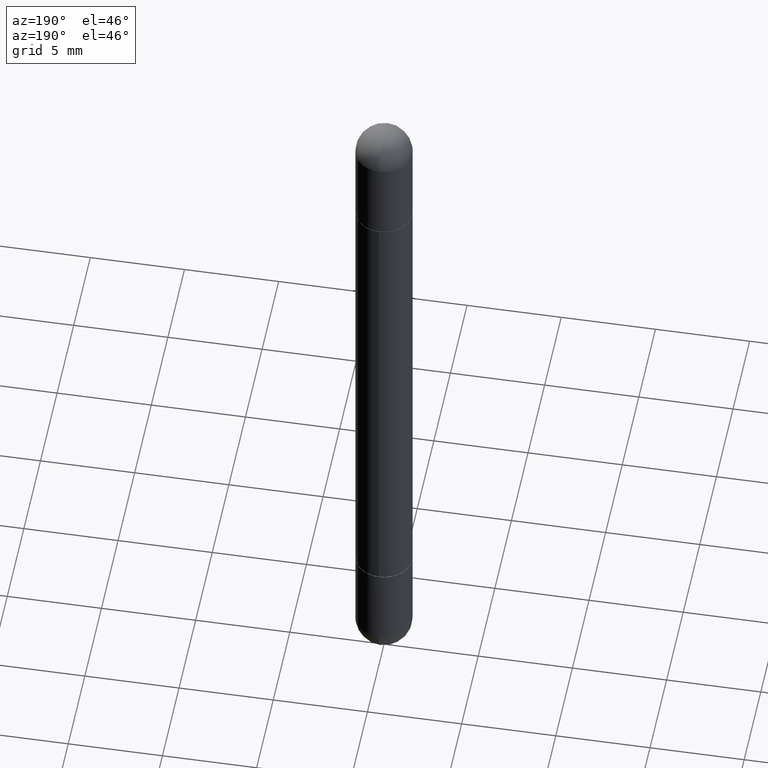
[diagram: clean part render]
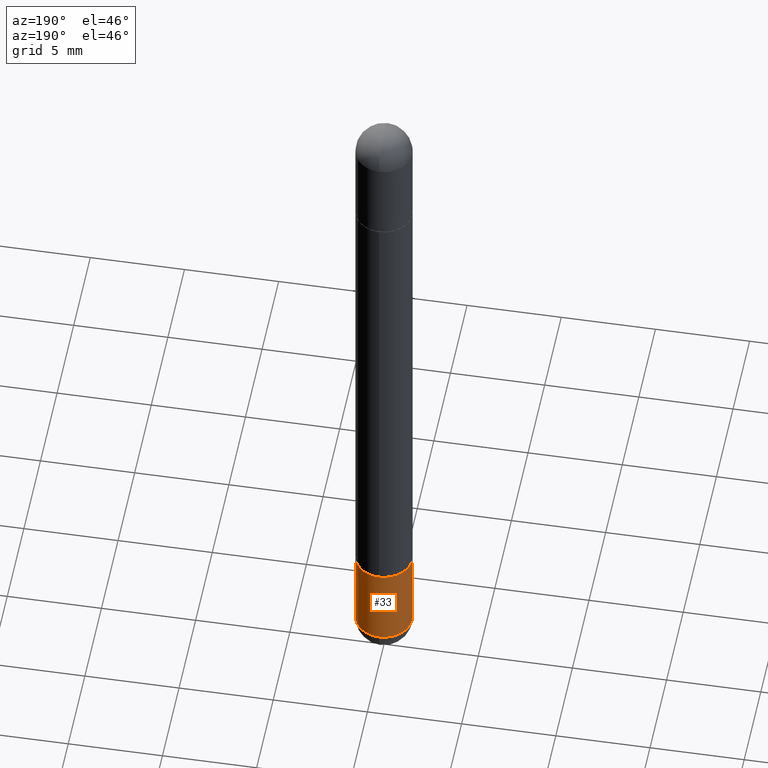
[diagram: same view with one face highlighted and labeled with its STEP entity id]
A machine part, auxiliary view. The second image highlights one B-rep face of the part: STEP entity #33.
In plain terms, the highlighted cylindrical surface (edge-blend (fillet) strip) has radius 1.4999 mm, axis along (-0, 0, 1).
Its self-contained STEP definition (entity closure, byte-faithful):
#5 = LINE ( 'NONE', #512, #705 ) ;
#10 = VERTEX_POINT ( 'NONE', #435 ) ;
#33 = ADVANCED_FACE ( 'NONE', ( #363 ), #689, .T. ) ;
#66 = DIRECTION ( 'NONE',  ( -2.445468806185136877E-29, 3.491481338843145188E-15, 1.000000000000000000 ) ) ;
#74 = CIRCLE ( 'NONE', #321, 0.05905000000000001914 ) ;
#90 = EDGE_CURVE ( 'NONE', #10, #471, #542, .T. ) ;
#102 = EDGE_CURVE ( 'NONE', #10, #688, #5, .T. ) ;
#117 = VECTOR ( 'NONE', #66, 39.37007874015748143 ) ;
#136 = EDGE_CURVE ( 'NONE', #462, #365, #322, .T. ) ;
#158 = EDGE_CURVE ( 'NONE', #688, #365, #653, .T. ) ;
#159 = AXIS2_PLACEMENT_3D ( 'NONE', #648, #249, #254 ) ;
#167 = CARTESIAN_POINT ( 'NONE',  ( 0.000000000000000000, 0.000000000000000000, 0.000000000000000000 ) ) ;
#176 = ORIENTED_EDGE ( 'NONE', *, *, #136, .T. ) ;
#206 = DIRECTION ( 'NONE',  ( -2.445468806185136877E-29, 3.491481338843145188E-15, 1.000000000000000000 ) ) ;
#213 = AXIS2_PLACEMENT_3D ( 'NONE', #167, #429, #420 ) ;
#217 = DIRECTION ( 'NONE',  ( -2.445468806185136597E-29, 3.491481338843145583E-15, 1.000000000000000000 ) ) ;
#249 = DIRECTION ( 'NONE',  ( -2.445468806185136597E-29, 3.491481338843145583E-15, 1.000000000000000000 ) ) ;
#254 = DIRECTION ( 'NONE',  ( 1.000000000000000000, -6.982962677686270655E-15, 0.000000000000000000 ) ) ;
#296 = EDGE_LOOP ( 'NONE', ( #650, #176, #395, #374, #619 ) ) ;
#314 = CARTESIAN_POINT ( 'NONE',  ( 3.081046148912652946E-29, -4.398917338808479031E-15, -1.259899999999999798 ) ) ;
#321 = AXIS2_PLACEMENT_3D ( 'NONE', #662, #217, #472 ) ;
#322 = LINE ( 'NONE', #711, #117 ) ;
#363 = FACE_OUTER_BOUND ( 'NONE', #296, .T. ) ;
#365 = VERTEX_POINT ( 'NONE', #537 ) ;
#374 = ORIENTED_EDGE ( 'NONE', *, *, #102, .F. ) ;
#376 = DIRECTION ( 'NONE',  ( -2.445468806185136597E-29, 3.491481338843145583E-15, 1.000000000000000000 ) ) ;
#395 = ORIENTED_EDGE ( 'NONE', *, *, #158, .F. ) ;
#397 = AXIS2_PLACEMENT_3D ( 'NONE', #314, #376, #575 ) ;
#420 = DIRECTION ( 'NONE',  ( 1.000000000000000000, -6.982962677686266711E-15, 4.876176775795935793E-29 ) ) ;
#429 = DIRECTION ( 'NONE',  ( -2.445468806185136597E-29, 3.491481338843145583E-15, 1.000000000000000000 ) ) ;
#435 = CARTESIAN_POINT ( 'NONE',  ( 0.05905000000000001914, -5.120519244513884944E-15, -1.437049999999999939 ) ) ;
#462 = VERTEX_POINT ( 'NONE', #622 ) ;
#471 = VERTEX_POINT ( 'NONE', #683 ) ;
#472 = DIRECTION ( 'NONE',  ( 1.000000000000000000, -6.982962677686270655E-15, 0.000000000000000000 ) ) ;
#512 = CARTESIAN_POINT ( 'NONE',  ( 0.05905000000000001914, -4.123439461173741806E-16, 2.879382386107500921E-30 ) ) ;
#537 = CARTESIAN_POINT ( 'NONE',  ( -0.05905000000000001914, -4.288599812930171320E-15, -1.259899999999999798 ) ) ;
#542 = CIRCLE ( 'NONE', #159, 0.05905000000000001914 ) ;
#575 = DIRECTION ( 'NONE',  ( 1.000000000000000000, -6.982962677686270655E-15, 0.000000000000000000 ) ) ;
#619 = ORIENTED_EDGE ( 'NONE', *, *, #90, .T. ) ;
#622 = CARTESIAN_POINT ( 'NONE',  ( -0.05905000000000001914, -4.288599812930171320E-15, -1.437049999999999939 ) ) ;
#648 = CARTESIAN_POINT ( 'NONE',  ( 3.514260947928350449E-29, -5.017433257984542594E-15, -1.437049999999999939 ) ) ;
#650 = ORIENTED_EDGE ( 'NONE', *, *, #778, .T. ) ;
#653 = CIRCLE ( 'NONE', #397, 0.05905000000000001914 ) ;
#662 = CARTESIAN_POINT ( 'NONE',  ( 3.514260947928350449E-29, -5.017433257984542594E-15, -1.437049999999999939 ) ) ;
#683 = CARTESIAN_POINT ( 'NONE',  ( 4.123439461174084467E-16, 0.05904999999999487742, -1.437050000000000161 ) ) ;
#688 = VERTEX_POINT ( 'NONE', #714 ) ;
#689 = CYLINDRICAL_SURFACE ( 'NONE', #213, 0.05905000000000001914 ) ;
#705 = VECTOR ( 'NONE', #206, 39.37007874015748143 ) ;
#711 = CARTESIAN_POINT ( 'NONE',  ( -0.05905000000000001914, 4.195754854663392958E-16, -2.904631170795522943E-30 ) ) ;
#714 = CARTESIAN_POINT ( 'NONE',  ( 0.05905000000000001914, -4.811261284925853162E-15, -1.259899999999999798 ) ) ;
#778 = EDGE_CURVE ( 'NONE', #471, #462, #74, .T. ) ;